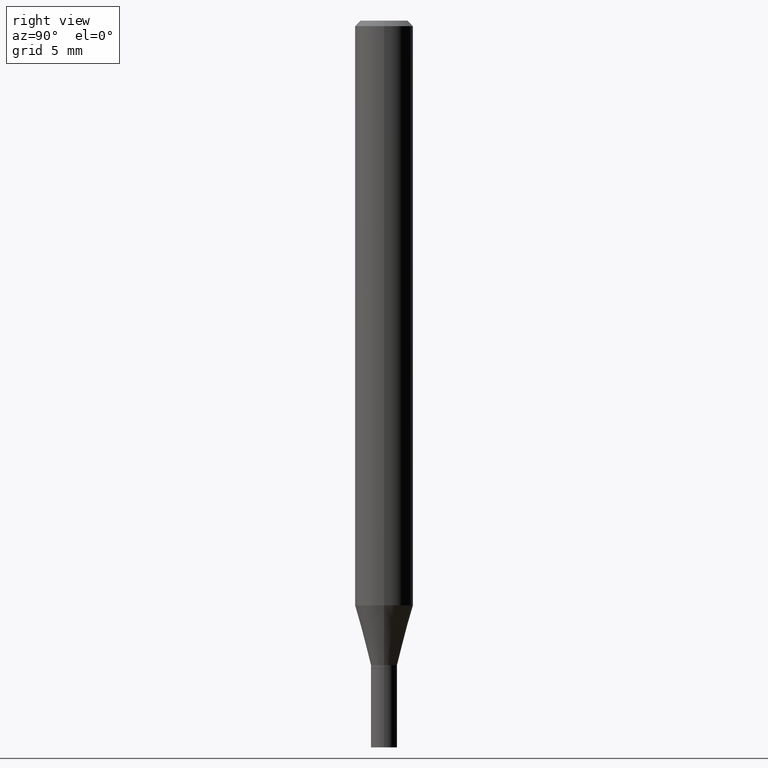
[diagram: clean part render]
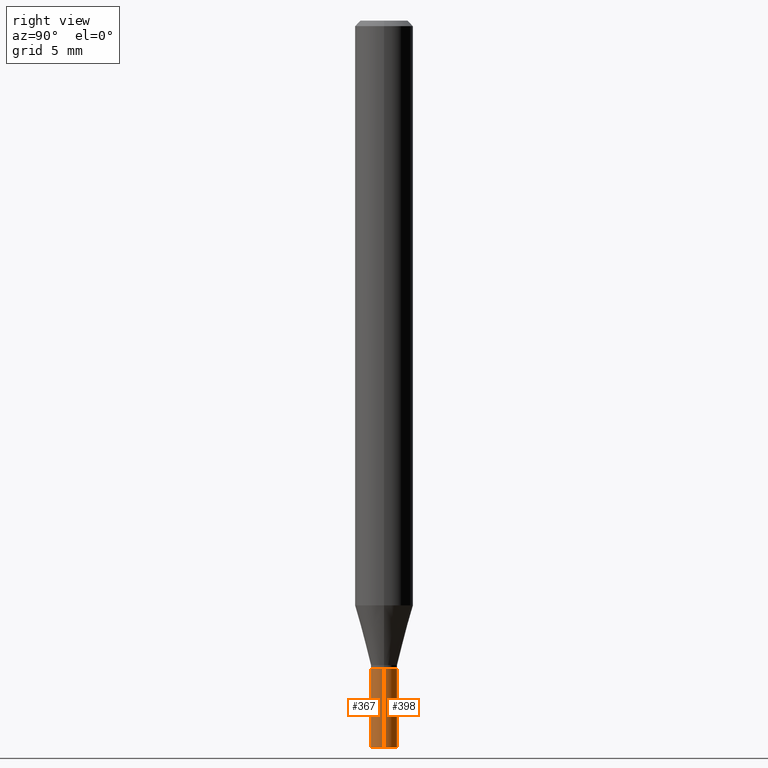
[diagram: same view with one multi-face feature highlighted, each face labeled with its STEP entity id]
A machine part, right view. The highlighted faces form ONE feature: a constant-radius fillet chain: 2 tangent blend faces with common blend radius 0.9004 mm. The faces share edges in the B-rep.
Their STEP definitions:
[1] entity #367 (Cylinder):
#2 = DIRECTION ( 'NONE',  ( 1.000000000000000000, -6.982962677686254089E-15, 0.000000000000000000 ) ) ;
#8 = DIRECTION ( 'NONE',  ( -2.445468806185136597E-29, 3.491481338843145583E-15, 1.000000000000000000 ) ) ;
#16 = DIRECTION ( 'NONE',  ( 1.000000000000000000, -6.982962677686254089E-15, 0.000000000000000000 ) ) ;
#19 = LINE ( 'NONE', #133, #283 ) ;
#60 = DIRECTION ( 'NONE',  ( -2.445468806185136597E-29, 3.491481338843145583E-15, 1.000000000000000000 ) ) ;
#68 = EDGE_CURVE ( 'NONE', #452, #208, #430, .T. ) ;
#69 = CARTESIAN_POINT ( 'NONE',  ( -0.03545000000000000234, -6.249949149366749676E-15, -1.968500000000000139 ) ) ;
#71 = CYLINDRICAL_SURFACE ( 'NONE', #357, 0.03545000000000000234 ) ;
#90 = CARTESIAN_POINT ( 'NONE',  ( 4.813905344975441835E-29, -6.872981015512731707E-15, -1.968500000000000139 ) ) ;
#91 = AXIS2_PLACEMENT_3D ( 'NONE', #90, #60, #16 ) ;
#128 = DIRECTION ( 'NONE',  ( -2.445468806185136877E-29, 3.491481338843145188E-15, 1.000000000000000000 ) ) ;
#133 = CARTESIAN_POINT ( 'NONE',  ( -0.03545000000000000234, 2.518873998269555325E-16, -1.743762489495364089E-30 ) ) ;
#176 = CARTESIAN_POINT ( 'NONE',  ( -0.03545000000000000234, -6.249949149366749676E-15, -1.755900000000000016 ) ) ;
#193 = EDGE_CURVE ( 'NONE', #360, #452, #19, .T. ) ;
#194 = VERTEX_POINT ( 'NONE', #311 ) ;
#208 = VERTEX_POINT ( 'NONE', #313 ) ;
#209 = CIRCLE ( 'NONE', #91, 0.03545000000000000234 ) ;
#216 = CARTESIAN_POINT ( 'NONE',  ( 0.000000000000000000, 0.000000000000000000, 0.000000000000000000 ) ) ;
#221 = DIRECTION ( 'NONE',  ( -2.445468806185136597E-29, 3.491481338843145583E-15, 1.000000000000000000 ) ) ;
#222 = EDGE_CURVE ( 'NONE', #360, #194, #209, .T. ) ;
#249 = CARTESIAN_POINT ( 'NONE',  ( 0.03545000000000000234, -2.475460269239781793E-16, 1.728604667019659440E-30 ) ) ;
#263 = ORIENTED_EDGE ( 'NONE', *, *, #193, .F. ) ;
#281 = AXIS2_PLACEMENT_3D ( 'NONE', #409, #8, #2 ) ;
#283 = VECTOR ( 'NONE', #128, 39.37007874015748143 ) ;
#311 = CARTESIAN_POINT ( 'NONE',  ( 0.03545000000000000234, -7.120527042436709591E-15, -1.968500000000000139 ) ) ;
#313 = CARTESIAN_POINT ( 'NONE',  ( 0.03545000000000000234, -6.378238109798657085E-15, -1.755900000000000016 ) ) ;
#321 = DIRECTION ( 'NONE',  ( 1.000000000000000000, -6.982962677686266711E-15, 4.876176775795935793E-29 ) ) ;
#323 = FACE_OUTER_BOUND ( 'NONE', #353, .T. ) ;
#326 = EDGE_CURVE ( 'NONE', #194, #208, #393, .T. ) ;
#327 = DIRECTION ( 'NONE',  ( -2.445468806185136877E-29, 3.491481338843145188E-15, 1.000000000000000000 ) ) ;
#353 = EDGE_LOOP ( 'NONE', ( #263, #401, #438, #392 ) ) ;
#357 = AXIS2_PLACEMENT_3D ( 'NONE', #216, #221, #321 ) ;
#360 = VERTEX_POINT ( 'NONE', #69 ) ;
#367 = ADVANCED_FACE ( 'NONE', ( #323 ), #71, .T. ) ;
#392 = ORIENTED_EDGE ( 'NONE', *, *, #68, .F. ) ;
#393 = LINE ( 'NONE', #249, #396 ) ;
#396 = VECTOR ( 'NONE', #327, 39.37007874015748143 ) ;
#401 = ORIENTED_EDGE ( 'NONE', *, *, #222, .T. ) ;
#409 = CARTESIAN_POINT ( 'NONE',  ( 4.293998676780481635E-29, -6.130692082874679991E-15, -1.755900000000000016 ) ) ;
#430 = CIRCLE ( 'NONE', #281, 0.03545000000000000234 ) ;
#438 = ORIENTED_EDGE ( 'NONE', *, *, #326, .T. ) ;
#452 = VERTEX_POINT ( 'NONE', #176 ) ;
[2] entity #398 (Cylinder):
#5 = DIRECTION ( 'NONE',  ( -2.445468806185136597E-29, 3.491481338843145583E-15, 1.000000000000000000 ) ) ;
#19 = LINE ( 'NONE', #133, #283 ) ;
#34 = CARTESIAN_POINT ( 'NONE',  ( 0.000000000000000000, 0.000000000000000000, 0.000000000000000000 ) ) ;
#35 = EDGE_CURVE ( 'NONE', #194, #360, #236, .T. ) ;
#55 = DIRECTION ( 'NONE',  ( -2.445468806185136597E-29, 3.491481338843145583E-15, 1.000000000000000000 ) ) ;
#69 = CARTESIAN_POINT ( 'NONE',  ( -0.03545000000000000234, -6.249949149366749676E-15, -1.968500000000000139 ) ) ;
#73 = CIRCLE ( 'NONE', #132, 0.03545000000000000234 ) ;
#99 = DIRECTION ( 'NONE',  ( -2.445468806185136597E-29, 3.491481338843145583E-15, 1.000000000000000000 ) ) ;
#123 = CARTESIAN_POINT ( 'NONE',  ( 4.813905344975441835E-29, -6.872981015512731707E-15, -1.968500000000000139 ) ) ;
#128 = DIRECTION ( 'NONE',  ( -2.445468806185136877E-29, 3.491481338843145188E-15, 1.000000000000000000 ) ) ;
#132 = AXIS2_PLACEMENT_3D ( 'NONE', #377, #55, #344 ) ;
#133 = CARTESIAN_POINT ( 'NONE',  ( -0.03545000000000000234, 2.518873998269555325E-16, -1.743762489495364089E-30 ) ) ;
#146 = ORIENTED_EDGE ( 'NONE', *, *, #326, .F. ) ;
#176 = CARTESIAN_POINT ( 'NONE',  ( -0.03545000000000000234, -6.249949149366749676E-15, -1.755900000000000016 ) ) ;
#182 = CYLINDRICAL_SURFACE ( 'NONE', #446, 0.03545000000000000234 ) ;
#193 = EDGE_CURVE ( 'NONE', #360, #452, #19, .T. ) ;
#194 = VERTEX_POINT ( 'NONE', #311 ) ;
#208 = VERTEX_POINT ( 'NONE', #313 ) ;
#236 = CIRCLE ( 'NONE', #316, 0.03545000000000000234 ) ;
#249 = CARTESIAN_POINT ( 'NONE',  ( 0.03545000000000000234, -2.475460269239781793E-16, 1.728604667019659440E-30 ) ) ;
#250 = ORIENTED_EDGE ( 'NONE', *, *, #280, .F. ) ;
#273 = DIRECTION ( 'NONE',  ( 1.000000000000000000, -6.982962677686254089E-15, 0.000000000000000000 ) ) ;
#280 = EDGE_CURVE ( 'NONE', #208, #452, #73, .T. ) ;
#283 = VECTOR ( 'NONE', #128, 39.37007874015748143 ) ;
#311 = CARTESIAN_POINT ( 'NONE',  ( 0.03545000000000000234, -7.120527042436709591E-15, -1.968500000000000139 ) ) ;
#313 = CARTESIAN_POINT ( 'NONE',  ( 0.03545000000000000234, -6.378238109798657085E-15, -1.755900000000000016 ) ) ;
#316 = AXIS2_PLACEMENT_3D ( 'NONE', #123, #5, #273 ) ;
#326 = EDGE_CURVE ( 'NONE', #194, #208, #393, .T. ) ;
#327 = DIRECTION ( 'NONE',  ( -2.445468806185136877E-29, 3.491481338843145188E-15, 1.000000000000000000 ) ) ;
#344 = DIRECTION ( 'NONE',  ( 1.000000000000000000, -6.982962677686254089E-15, 0.000000000000000000 ) ) ;
#360 = VERTEX_POINT ( 'NONE', #69 ) ;
#377 = CARTESIAN_POINT ( 'NONE',  ( 4.293998676780481635E-29, -6.130692082874679991E-15, -1.755900000000000016 ) ) ;
#393 = LINE ( 'NONE', #249, #396 ) ;
#396 = VECTOR ( 'NONE', #327, 39.37007874015748143 ) ;
#398 = ADVANCED_FACE ( 'NONE', ( #460 ), #182, .T. ) ;
#399 = EDGE_LOOP ( 'NONE', ( #424, #439, #250, #146 ) ) ;
#424 = ORIENTED_EDGE ( 'NONE', *, *, #35, .T. ) ;
#439 = ORIENTED_EDGE ( 'NONE', *, *, #193, .T. ) ;
#446 = AXIS2_PLACEMENT_3D ( 'NONE', #34, #99, #457 ) ;
#452 = VERTEX_POINT ( 'NONE', #176 ) ;
#457 = DIRECTION ( 'NONE',  ( 1.000000000000000000, -6.982962677686266711E-15, 4.876176775795935793E-29 ) ) ;
#460 = FACE_OUTER_BOUND ( 'NONE', #399, .T. ) ;